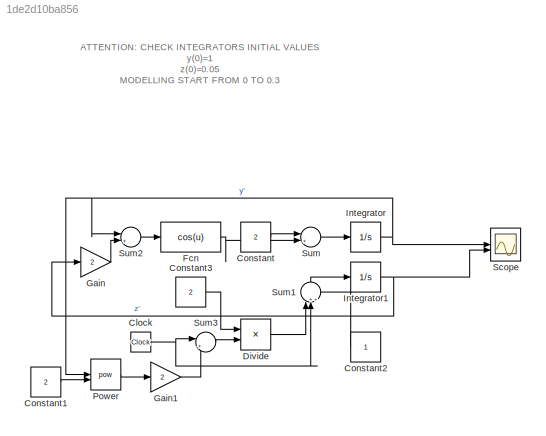
MODEL slx_1de2d10ba856
KIND model
CONFIG AbsTol = auto
CONFIG EnableMultiTasking = off
CONFIG FixedStep = auto
CONFIG MaxStep = auto
CONFIG MinStep = auto
CONFIG RelTol = 1e-3
CONFIG SampleTimeConstraint = Unconstrained
CONFIG SolverName = ode45
CONFIG StartTime = 0
CONFIG StopTime = 0.3
BLOCK [Clock] Clock
BLOCK [Constant] Constant
  Value = 2
BLOCK [Constant] Constant1
  Value = 2
BLOCK [Constant] Constant2
  NameLocation = top
BLOCK [Constant] Constant3
  Value = 2
BLOCK [Product] Divide
  Inputs = */
BLOCK [Fcn] Fcn
  Expr = cos(u)
BLOCK [Gain] Gain
  Gain = 2
BLOCK [Gain] Gain1
  Gain = 2
BLOCK [Integrator] Integrator
  InitialCondition = 1
BLOCK [Integrator] Integrator1
  InitialCondition = 0.05
BLOCK [Math] Power
  Operator = pow
BLOCK [Scope] Scope
  Floating = off
  NumInputPorts = 2
  ScopeSpecificationString = Simulink.scopes.TimeScopeBlockCfg('CurrentConfiguration', extmgr.ConfigurationSet(extmgr.Configuration('Core','General UI',true),extmgr.Configuration('Core','Source UI',true),extmgr.Configuration('Sources','WiredSimulink',true),extmgr.Configuration('Visuals','Time Domain',true,'SerializedDisplays',{struct('MinYLimReal','0.93683','MaxYLimReal','1.56855','YLabelReal','','MinYLimMag','0.93683','MaxYL...<+1933ch>
BLOCK [Sum] Sum
  Inputs = |++
BLOCK [Sum] Sum1
  Inputs = |+++
  NameLocation = right
BLOCK [Sum] Sum2
  Inputs = |++
BLOCK [Sum] Sum3
  Inputs = |++
ANNOTATION (root): ATTENTION: CHECK INTEGRATORS INITIAL VALUES y(0)=1 z(0)=0.05 MODELLING START FROM 0 TO 0.3
NET Clock:1 -> Sum1:2, Sum3:1
LINE Constant1:1 -> Power:2
LINE Constant2:1 -> Sum1:3
LINE Constant3:1 -> Divide:1
LINE Constant:1 -> Sum:1
LINE Divide:1 -> Sum1:1
LINE Fcn:1 -> Sum:2
LINE Gain1:1 -> Sum3:2
LINE Gain:1 -> Sum2:2
NET Integrator1:1 -> Gain:1, Scope:2
NET Integrator:1 -> Power:1, Scope:1, Sum2:1
LINE Power:1 -> Gain1:1
LINE Sum1:1 -> Integrator1:1
LINE Sum2:1 -> Fcn:1
LINE Sum3:1 -> Divide:2
LINE Sum:1 -> Integrator:1
note: NET lines group one-source signal fan-out (src -> all destinations, sorted); 1:1 wires keep LINE
